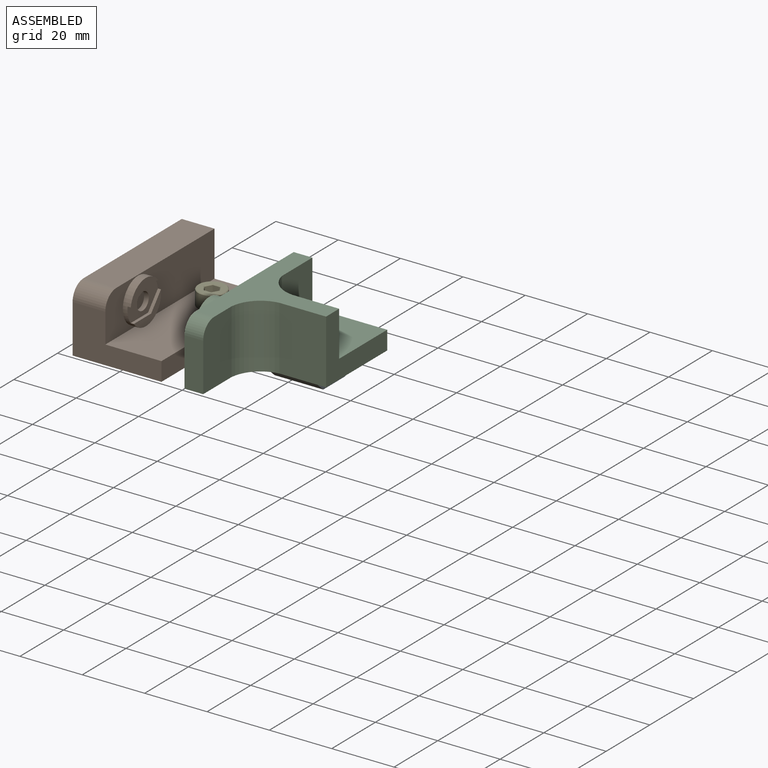
[diagram: assembled view]
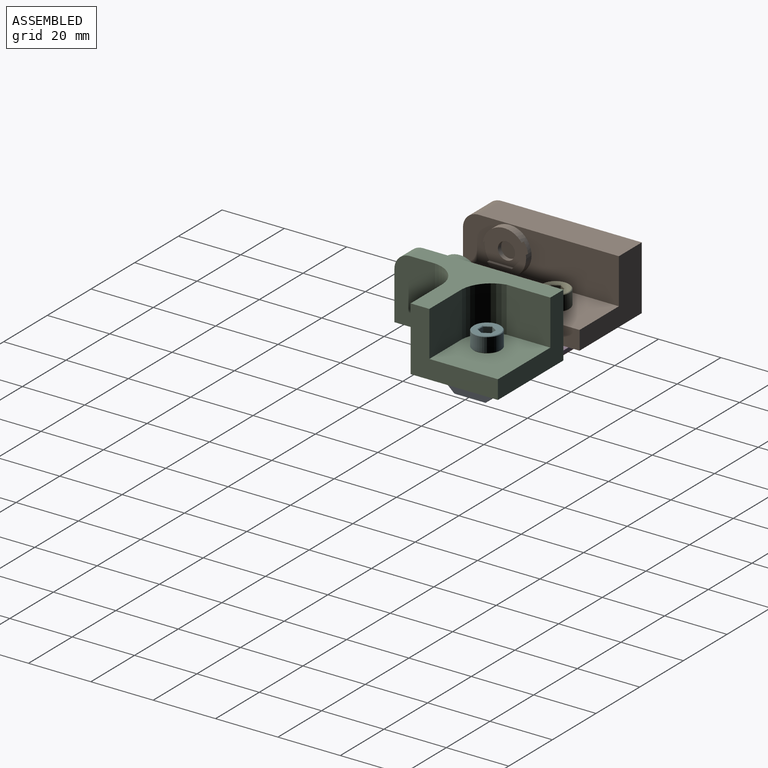
[diagram: assembled view, second angle]
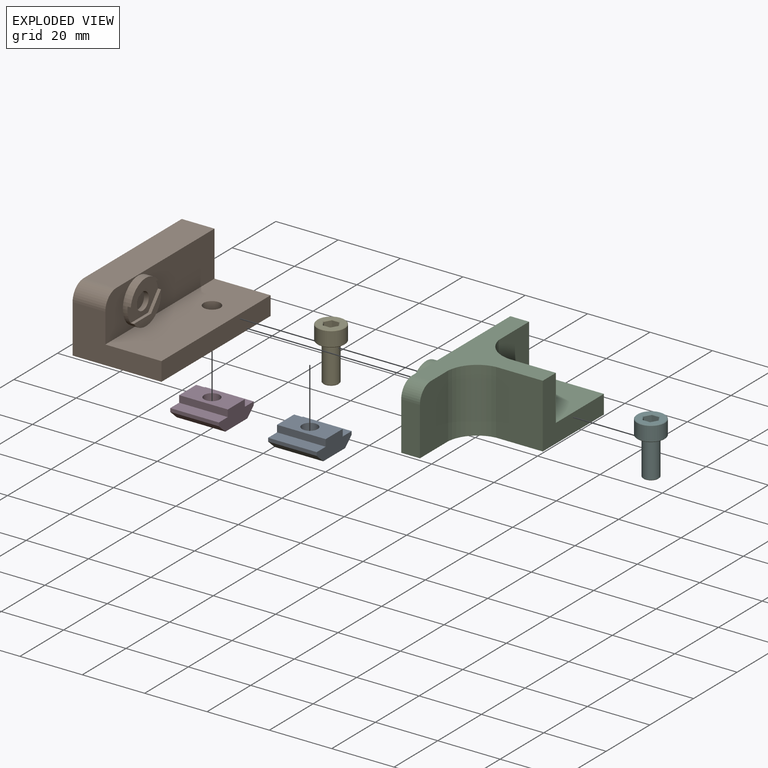
[diagram: exploded view]
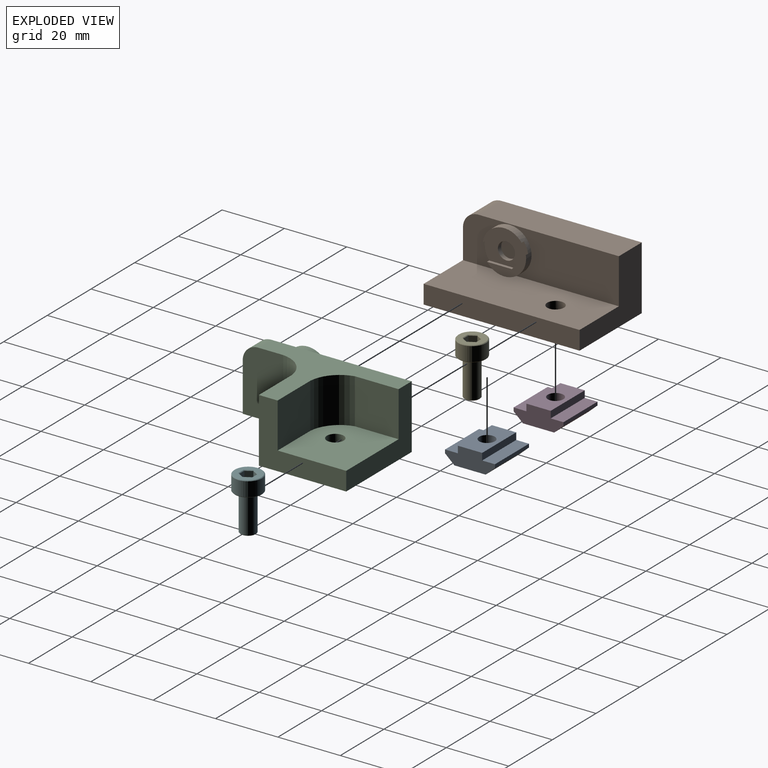
[diagram: exploded view, second angle]
ASSEMBLY  parts=6 mates=4
PART A: 13 faces, bbox 16x6x15.6 mm
  f0: plane 15.6x2.2mm, normal (1,0,0), area 34.3mm2, adj f1,f9,f10,f11
  f1: plane 15.6x7.8mm, normal (0,1,0), area 102mm2, adj f0,f2,f10,f11,f12
  f2: plane 15.6x2.2mm, normal (-1,0,0), area 34.3mm2, adj f1,f3,f10,f11
  f3: plane 15.6x4.1mm, normal (0,1,0), area 64mm2, adj f2,f4,f10,f11
  f4: plane 15.6x1.1mm, normal (-1,0,0), area 17.2mm2, adj f3,f5,f10,f11
  f5: plane 15.6x3mm, normal (-0.67,-0.74,0), area 63mm2, adj f4,f6,f10,f11
  f6: plane 15.6x10mm, normal (0,-1,0), area 136.4mm2, adj f5,f7,f10,f11,f12
  f7: plane 15.6x3mm, normal (0.67,-0.74,0), area 63mm2, adj f6,f8,f10,f11
  f8: plane 15.6x1.1mm, normal (1,0,0), area 17.2mm2, adj f7,f9,f10,f11
  f9: plane 15.6x4.1mm, normal (0,1,0), area 64mm2, adj f0,f8,f10,f11
  f10: plane 16x6mm, normal (0,0,1), area 69.9mm2, adj f0,f1,f2,f3,f4,f5,f6,f7
  f11: plane 16x6mm, normal (0,0,-1), area 69.9mm2, adj f0,f1,f2,f3,f4,f5,f6,f7
  f12: cylinder r=2.5mm len=6mm, axis (0,1,0), area 94.2mm2, adj f1,f6
PART B: 20 faces, bbox 28.5x50x20.5 mm
  f0: plane 12.48x5.92mm, normal (1,0,0), area 30.7mm2, adj f9,f13,f14
  f1: plane 28.5x15.5mm, normal (0,-1,0), area 270.8mm2, adj f2,f5,f6,f7,f18,f19
  f2: plane 50x6mm, normal (1,0,0), area 300mm2, adj f1,f3,f5,f6
  f3: plane 28.5x20.5mm, normal (0,1,0), area 323.3mm2, adj f2,f5,f6,f7,f8,f18
  f4: cylinder r=2.7mm len=6mm, axis (0,0,-1), area 101.8mm2, adj f5,f6
  f5: plane 50x18mm, normal (0,0,1), area 877.1mm2, adj f1,f2,f3,f4,f7
  f6: plane 50x28.5mm, normal (0,0,-1), area 1402.1mm2, adj f1,f2,f3,f4,f18
  f7: plane 50x14.5mm, normal (1,0,0), area 565.7mm2, adj f1,f3,f5,f8,f9,f19
  f8: plane 45x10.5mm, normal (0,0,1), area 472.5mm2, adj f3,f7,f18,f19
  f9: cylinder r=7mm len=14mm, axis (-1,0,0), area 100.8mm2, adj f0,f7,f10,f11,f12,f13,f14,f15
  f10: plane 12.56x8.03mm, normal (1,0,0), area 31.6mm2, adj f9,f11,f12
  f11: plane 8x1mm, normal (0,0,1), area 8mm2, adj f9,f10,f12,f15
  f12: plane 5.28x4.49mm, normal (0,-0.76,0.65), area 6.9mm2, adj f9,f10,f11,f15
  f13: plane 5.56x1mm, normal (0,0,-1), area 5.6mm2, adj f0,f9,f14,f15
  f14: plane 6.92x3.17mm, normal (0,0.42,-0.91), area 7.6mm2, adj f0,f9,f13,f15
  f15: plane 13.92x8.5mm, normal (1,0,0), area 67.9mm2, adj f9,f11,f12,f13,f14,f17
  f16: plane 5.5x5.5mm, normal (1,0,0), area 23.8mm2, adj f17
  f17: cylinder r=2.75mm len=5.5mm, axis (1,0,0), area 25.9mm2, adj f15,f16
  f18: plane 50x20.5mm, normal (-1,0,0), area 1019.6mm2, adj f1,f3,f6,f8,f19
  f19: cylinder r=5mm len=10.5mm, axis (-1,0,0), area 82.5mm2, adj f1,f7,f8,f18
PART C: 25 faces, bbox 32.5x50x20.5 mm
  f0: plane 12.48x5.92mm, normal (-1,0,0), area 30.7mm2, adj f16,f18,f19
  f1: plane 12.56x8.03mm, normal (-1,0,0), area 31.6mm2, adj f16,f17,f20
  f2: cylinder r=10mm len=20.5mm, axis (0,0,-1), area 282.8mm2, adj f3,f8,f11,f15
  f3: plane 20.5x15mm, normal (0,-1,0), area 307.5mm2, adj f2,f4,f11,f15
  f4: plane 28x20.5mm, normal (1,0,0), area 255mm2, adj f3,f5,f10,f11,f12,f15
  f5: plane 30x20.5mm, normal (0,1,0), area 267mm2, adj f4,f6,f10,f11,f14,f15
  f6: plane 50x20.5mm, normal (-1,0,0), area 865.7mm2, adj f5,f7,f11,f15,f16,f24
  f7: plane 15.5x6mm, normal (0,-1,0), area 93mm2, adj f6,f8,f11,f24
  f8: plane 20.5x13mm, normal (1,0,0), area 261.1mm2, adj f2,f7,f11,f15,f24
  f9: cylinder r=2.7mm len=6mm, axis (0,0,-1), area 101.8mm2, adj f10,f11
  f10: plane 24x22mm, normal (0,0,1), area 485.6mm2, adj f4,f5,f9,f12,f13,f14
  f11: plane 50x30mm, normal (0,0,-1), area 969.7mm2, adj f2,f3,f4,f5,f6,f7,f8,f9
  f12: plane 15x14.5mm, normal (0,1,0), area 217.5mm2, adj f4,f10,f13,f15
  f13: cylinder r=10mm len=14.5mm, axis (0,0,-1), area 187.4mm2, adj f10,f12,f14,f15
  f14: plane 14.5x14mm, normal (1,0,0), area 203mm2, adj f5,f10,f13,f15
  f15: plane 45x30mm, normal (0,0,1), area 454.1mm2, adj f2,f3,f4,f5,f6,f8,f12,f13
  f16: cylinder r=7mm len=14mm, axis (1,0,0), area 100.8mm2, adj f0,f1,f6,f17,f18,f19,f20,f21
  f17: plane 8x1mm, normal (0,0,1), area 8mm2, adj f1,f16,f20,f21
  f18: plane 6.92x3.17mm, normal (0,0.42,-0.91), area 7.6mm2, adj f0,f16,f19,f21
  f19: plane 5.56x1mm, normal (0,0,-1), area 5.6mm2, adj f0,f16,f18,f21
  f20: plane 5.28x4.49mm, normal (0,-0.76,0.65), area 6.9mm2, adj f1,f16,f17,f21
  f21: plane 13.92x8.5mm, normal (-1,0,0), area 67.9mm2, adj f16,f17,f18,f19,f20,f23
  f22: plane 5.5x5.5mm, normal (-1,0,0), area 23.8mm2, adj f23
  f23: cylinder r=2.75mm len=5.5mm, axis (-1,0,0), area 25.9mm2, adj f21,f22
  f24: cylinder r=5mm len=6mm, axis (-1,0,0), area 47.1mm2, adj f6,f7,f8,f15
PART D: same geometry as A
PART E: 21 faces, bbox 8.9x8.9x17 mm
  f0: plane 3.8x2.37mm, normal (0,-1,0), area 9mm2, adj f1,f5,f8,f17
  f1: plane 3.8x2.05mm, normal (-0.87,-0.5,0), area 9mm2, adj f0,f2,f8,f18
  f2: plane 3.8x2.05mm, normal (-0.87,0.5,0), area 9mm2, adj f1,f3,f8,f16
  f3: plane 3.8x2.37mm, normal (0,1,0), area 9mm2, adj f2,f4,f8,f14
  f4: plane 3.8x2.05mm, normal (0.87,0.5,0), area 9mm2, adj f3,f5,f8,f13
  f5: plane 3.8x2.05mm, normal (0.87,-0.5,0), area 9mm2, adj f0,f4,f8,f15
  f6: cylinder r=4.45mm len=8.9mm, axis (0,0,-1), area 128.6mm2, adj f12,f19
  f7: plane 8.5x8.5mm, normal (0,0,-1), area 39.2mm2, adj f13,f14,f15,f16,f17,f18,f19
  f8: plane 4.73x4.1mm, normal (0,0,-1), area 14.6mm2, adj f0,f1,f2,f3,f4,f5
  f9: plane 8.5x8.5mm, normal (0,0,1), area 37.1mm2, adj f10,f12
  f10: cylinder r=2.5mm len=11.8mm, axis (0,0,-1), area 185.4mm2, adj f9,f20
  f11: plane 4.6x4.6mm, normal (0,0,1), area 16.6mm2, adj f20
  f12: cone r=4.25mm half-angle=45deg, axis (0,0,-1), area 7.7mm2, adj f6,f9
  f13: plane 2.25x1.41mm, normal (0.61,0.35,-0.71), area 0.7mm2, adj f4,f7,f14,f15
  f14: plane 2.6x0.2mm, normal (0,0.71,-0.71), area 0.7mm2, adj f3,f7,f13,f16
  f15: plane 2.25x1.41mm, normal (0.61,-0.35,-0.71), area 0.7mm2, adj f5,f7,f13,f17
  f16: plane 2.25x1.41mm, normal (-0.61,0.35,-0.71), area 0.7mm2, adj f2,f7,f14,f18
  f17: plane 2.6x0.2mm, normal (0,-0.71,-0.71), area 0.7mm2, adj f0,f7,f15,f18
  f18: plane 2.25x1.41mm, normal (-0.61,-0.35,-0.71), area 0.7mm2, adj f1,f7,f16,f17
  f19: cone r=4.45mm half-angle=45deg, axis (0,0,1), area 7.7mm2, adj f6,f7
  f20: cone r=2.3mm half-angle=45deg, axis (0,0,-1), area 4.3mm2, adj f10,f11
PART F: same geometry as E
PLACE A rot(axis=(0.58,-0.58,-0.58),120deg) t=(37.35,-24.84,28.27)mm
PLACE B t=(-1.84,6.47,2.3)mm
PLACE C t=(-1.84,6.47,2.3)mm
PLACE D rot(axis=(0.58,0.58,0.58),120deg) t=(-9.64,80.28,28.47)mm
PLACE E rot(axis=(0,1,0),180deg) t=(30.88,19.64,13.3)mm
PLACE F rot(axis=(0,1,0),180deg) t=(62.27,19.64,13.3)mm
MATE fastened E.f6 <-> B.f4  axis (0,0,-1) through (-1.84,27.72,8.3)mm
MATE fastened A.f12 <-> F.f6  axis (0,0,1) through (29.55,27.72,2.3)mm
MATE fastened D.f12 <-> E.f6  axis (0,0,1) through (-1.84,27.72,2.5)mm
MATE fastened F.f6 <-> C.f9  axis (0,0,-1) through (29.55,27.72,8.3)mm
